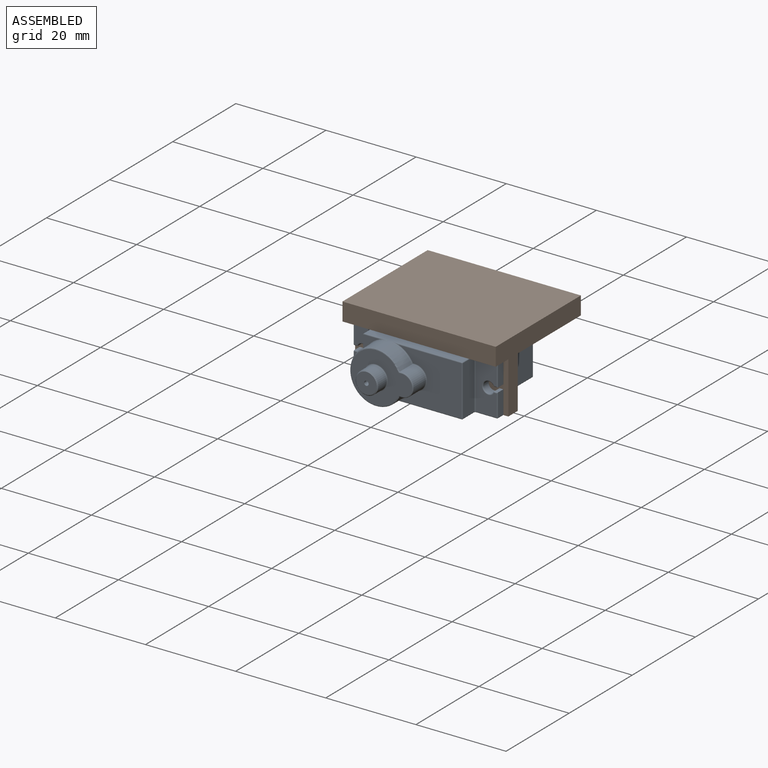
[diagram: assembled view]
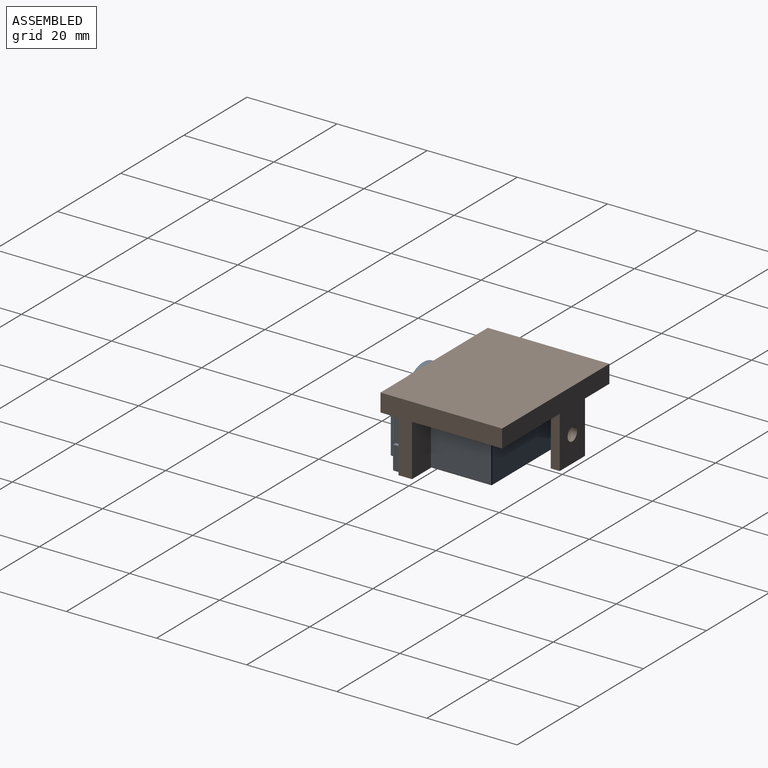
[diagram: assembled view, second angle]
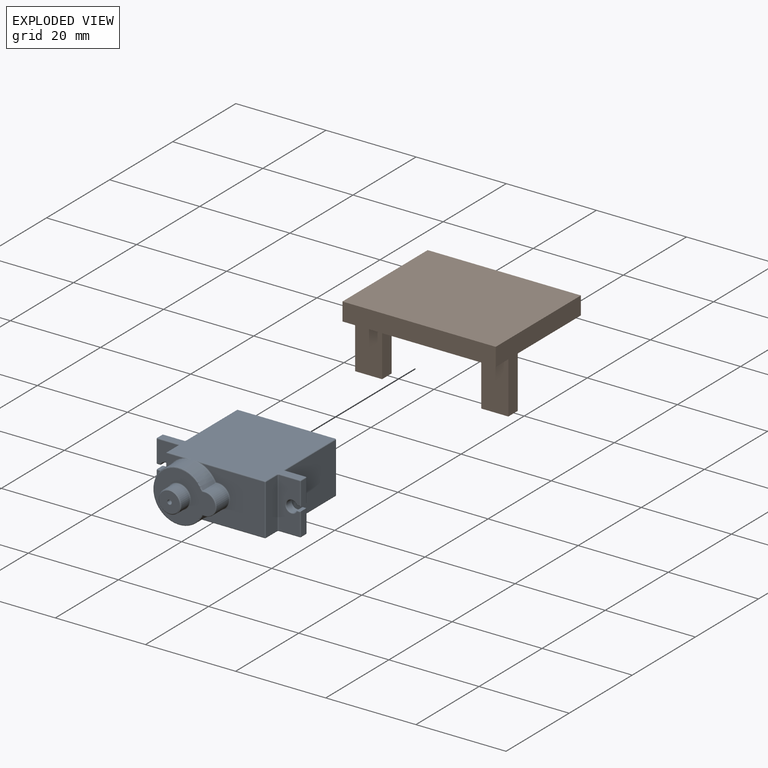
[diagram: exploded view]
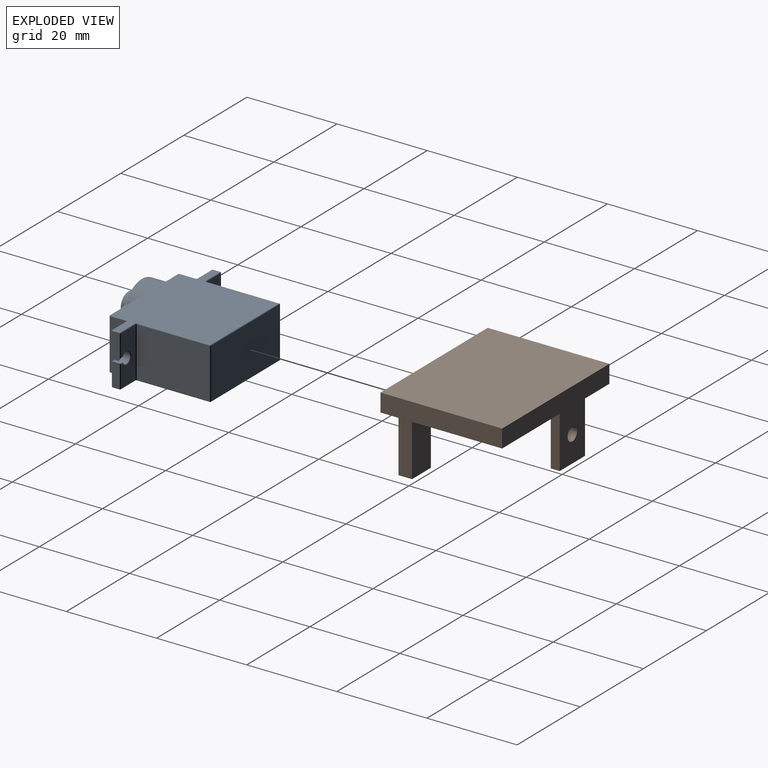
[diagram: exploded view, second angle]
ASSEMBLY  parts=2 mates=3
PART A: 138 faces, bbox 32.1x29.8x12.6 mm
  f0: plane 13.6x11.1mm, normal (0,-1,0), area 83.8mm2, adj f133,f134,f135,f136,f137
  f1: plane 4.02x3.61mm, normal (0,-1,0), area 4.9mm2, adj f9,f99,f100
  f2: plane 13.91x11.1mm, normal (0,-1,0), area 112.2mm2, adj f113,f114,f119,f122,f123,f126,f128,f129
  f3: plane 4.85x1.6mm, normal (-1,0,0), area 7.8mm2, adj f63,f64,f83,f84
  f4: plane 5.05x1.6mm, normal (1,0,0), area 8.1mm2, adj f20,f79,f95,f96
  f5: plane 16.1x11.1mm, normal (1,0,0), area 178.7mm2, adj f46,f47,f57,f58
  f6: plane 16.3x11.1mm, normal (-1,0,0), area 180.9mm2, adj f12,f48,f67,f68
  f7: plane 11.1x3.6mm, normal (1,0,0), area 40mm2, adj f111,f112,f121,f122
  f8: plane 31.6x22.1mm, normal (0,0,1), area 493.5mm2, adj f36,f37,f56,f57,f68,f69,f77,f78
  f9: plane 11.24x3.94mm, normal (-1,0,0), area 42.2mm2, adj f1,f11,f98,f101,f115,f124,f131
  f10: plane 31.6x22.1mm, normal (0,0,-1), area 493.5mm2, adj f41,f42,f45,f47,f48,f54,f55,f61
  f11: plane 4.02x3.61mm, normal (0,-1,0), area 4.9mm2, adj f9,f127,f132
  f12: plane 21.8x11.1mm, normal (0,1,0), area 242mm2, adj f6,f45,f46,f56
  f13: plane 4.85x1.6mm, normal (-1,0,0), area 7.8mm2, adj f86,f87,f103,f104
  f14: plane 11.1x4.6mm, normal (0,1,0), area 43.9mm2, adj f51,f53,f62,f63,f66,f67,f87,f88
  f15: plane 11.1x4.6mm, normal (0,-1,0), area 43.9mm2, adj f65,f75,f84,f85,f102,f103,f115,f116
  f16: plane 11.1x4.6mm, normal (0,1,0), area 43.9mm2, adj f49,f58,f59,f60,f61,f70,f78,f79
  f17: plane 11.1x4.6mm, normal (0,-1,0), area 43.9mm2, adj f71,f80,f81,f90,f96,f97,f110,f111
  f18: plane 5.05x1.6mm, normal (1,0,0), area 8.1mm2, adj f21,f60,f81,f82
  f19: cylinder r=1.25mm len=2.5mm, axis (0,-1,0), area 10.9mm2, adj f20,f21,f59,f80
  f20: plane 1.6x0.85mm, normal (0,0,-1), area 1.4mm2, adj f4,f19,f70,f90
  f21: plane 1.6x0.85mm, normal (0,0,1), area 1.4mm2, adj f18,f19,f49,f71
  f22: cylinder r=1.25mm len=2.5mm, axis (0,-1,0), area 10.9mm2, adj f23,f24,f53,f75
  f23: plane 1.6x0.65mm, normal (0,0,1), area 1mm2, adj f22,f51,f64,f65
  f24: plane 1.6x0.65mm, normal (0,0,-1), area 1mm2, adj f22,f66,f85,f86
  f25: cylinder r=2.5mm len=5mm, axis (0,1,0), area 29.8mm2, adj f26,f28,f123,f136
  f26: plane 3.8x0.57mm, normal (0,0,1), area 2.2mm2, adj f25,f27,f126,f134
  f27: cylinder r=5.75mm len=11.5mm, axis (0,1,0), area 117.9mm2, adj f26,f28,f34,f39,f98,f100,f107,f114
  f28: plane 3.8x0.57mm, normal (0,0,-1), area 2.2mm2, adj f25,f27,f119,f137
  f29: cylinder r=2.5mm len=5mm, axis (0,1,0), area 40.8mm2, adj f31,f133
  f30: plane 4.6x4.6mm, normal (0,-1,0), area 15.8mm2, adj f31,f32
  f31: cone r=2.3mm half-angle=45deg, axis (0,1,0), area 4.3mm2, adj f29,f30
  f32: cylinder r=0.5mm len=3mm, axis (0,-1,0), area 9.4mm2, adj f30,f33
  f33: plane 1x1mm, normal (0,-1,0), area 0.8mm2, adj f32
  f34: bspline ~2.08x0.39mm, area 0.3mm2, adj f27,f35,f129,f130
  f35: bspline ~2.14x0.33mm, area 0.3mm2, adj f34,f36,f128,f129
  f36: bspline ~2.14x0.2mm, area 0.4mm2, adj f8,f35,f37,f128
  f37: bspline ~2.14x0.2mm, area 0.4mm2, adj f8,f36,f38,f127
  f38: bspline ~2.14x0.33mm, area 0.3mm2, adj f37,f127,f130,f132
  f39: bspline ~2.08x0.39mm, area 0.3mm2, adj f27,f40,f100,f107
  f40: bspline ~2.14x0.33mm, area 0.3mm2, adj f39,f41,f99,f100
  f41: bspline ~2.14x0.2mm, area 0.4mm2, adj f10,f40,f42,f99
  f42: bspline ~2.14x0.2mm, area 0.4mm2, adj f10,f41,f43,f113
  f43: bspline ~2.14x0.33mm, area 0.3mm2, adj f42,f107,f113,f114
  f44: sphere r=0.2mm, area 0.1mm2, adj f45,f46,f47
  f45: cylinder r=0.2mm len=21.8mm, axis (1,0,0), area 6.8mm2, adj f10,f12,f44,f48
  f46: cylinder r=0.2mm len=11.1mm, axis (0,0,1), area 3.5mm2, adj f5,f12,f44,f50
  f47: cylinder r=0.2mm len=16.1mm, axis (0,1,0), area 5.1mm2, adj f5,f10,f44,f54
  f48: cylinder r=0.2mm len=16.3mm, axis (0,1,0), area 5.1mm2, adj f6,f10,f45,f55
  f49: cylinder r=0.2mm len=0.85mm, axis (1,0,0), area 0.2mm2, adj f16,f21,f59,f60
  f50: sphere r=0.2mm, area 0mm2, adj f46,f56,f57
  f51: cylinder r=0.2mm len=0.65mm, axis (1,0,0), area 0.2mm2, adj f14,f23,f52,f53
  f52: sphere r=0.2mm, area 0.1mm2, adj f51,f63,f64
  f53: torus R=1.45mm, axis (0,-1,0), area 2.2mm2, adj f14,f22,f51,f66
  f54: torus R=0.4mm, axis (0,0,1), area 0.1mm2, adj f10,f47,f58,f61
  f55: torus R=0.4mm, axis (0,0,1), area 0.1mm2, adj f10,f48,f62,f67
  f56: cylinder r=0.2mm len=21.8mm, axis (-1,0,0), area 6.8mm2, adj f8,f12,f50,f68
  f57: cylinder r=0.2mm len=16.1mm, axis (0,1,0), area 5.1mm2, adj f5,f8,f50,f69
  f58: cylinder r=0.2mm len=11.1mm, axis (0,0,-1), area 3.5mm2, adj f5,f16,f54,f69
  f59: torus R=1.45mm, axis (0,-1,0), area 2.2mm2, adj f16,f19,f49,f70
  f60: cylinder r=0.2mm len=5.05mm, axis (0,0,-1), area 1.6mm2, adj f16,f18,f49,f72
  f61: cylinder r=0.2mm len=4.6mm, axis (1,0,0), area 1.4mm2, adj f10,f16,f54,f72
  f62: cylinder r=0.2mm len=4.6mm, axis (1,0,0), area 1.4mm2, adj f10,f14,f55,f73
  f63: cylinder r=0.2mm len=4.85mm, axis (0,0,1), area 1.5mm2, adj f3,f14,f52,f73
  f64: cylinder r=0.2mm len=1.6mm, axis (0,1,0), area 0.5mm2, adj f3,f23,f52,f74
  f65: cylinder r=0.2mm len=0.65mm, axis (-1,0,0), area 0.2mm2, adj f15,f23,f74,f75
  f66: cylinder r=0.2mm len=0.65mm, axis (-1,0,0), area 0.2mm2, adj f14,f24,f53,f76
  f67: cylinder r=0.2mm len=11.1mm, axis (0,0,1), area 3.5mm2, adj f6,f14,f55,f77
  f68: cylinder r=0.2mm len=16.3mm, axis (0,1,0), area 5.1mm2, adj f6,f8,f56,f77
  f69: torus R=0.4mm, axis (0,0,-1), area 0.1mm2, adj f8,f57,f58,f78
  f70: cylinder r=0.2mm len=0.85mm, axis (-1,0,0), area 0.2mm2, adj f16,f20,f59,f79
  f71: cylinder r=0.2mm len=0.85mm, axis (-1,0,0), area 0.2mm2, adj f17,f21,f80,f81
  f72: sphere r=0.2mm, area 0.1mm2, adj f60,f61,f82
  f73: sphere r=0.2mm, area 0mm2, adj f62,f63,f83
  f74: sphere r=0.2mm, area 0.1mm2, adj f64,f65,f84
  f75: torus R=1.45mm, axis (0,-1,0), area 2.2mm2, adj f15,f22,f65,f85
  f76: sphere r=0.2mm, area 0.1mm2, adj f66,f86,f87
  f77: torus R=0.4mm, axis (0,0,-1), area 0.1mm2, adj f8,f67,f68,f88
  f78: cylinder r=0.2mm len=4.6mm, axis (-1,0,0), area 1.4mm2, adj f8,f16,f69,f89
  f79: cylinder r=0.2mm len=5.05mm, axis (0,0,-1), area 1.6mm2, adj f4,f16,f70,f89
  f80: torus R=1.45mm, axis (0,-1,0), area 2.2mm2, adj f17,f19,f71,f90
  f81: cylinder r=0.2mm len=5.05mm, axis (0,0,1), area 1.6mm2, adj f17,f18,f71,f91
  f82: cylinder r=0.2mm len=1.6mm, axis (0,1,0), area 0.5mm2, adj f10,f18,f72,f91
  f83: cylinder r=0.2mm len=1.6mm, axis (0,1,0), area 0.5mm2, adj f3,f10,f73,f92
  f84: cylinder r=0.2mm len=4.85mm, axis (0,0,-1), area 1.5mm2, adj f3,f15,f74,f92
  f85: cylinder r=0.2mm len=0.65mm, axis (1,0,0), area 0.2mm2, adj f15,f24,f75,f93
  f86: cylinder r=0.2mm len=1.6mm, axis (0,1,0), area 0.5mm2, adj f13,f24,f76,f93
  f87: cylinder r=0.2mm len=4.85mm, axis (0,0,1), area 1.5mm2, adj f13,f14,f76,f94
  f88: cylinder r=0.2mm len=4.6mm, axis (-1,0,0), area 1.4mm2, adj f8,f14,f77,f94
  f89: sphere r=0.2mm, area 0mm2, adj f78,f79,f95
  f90: cylinder r=0.2mm len=0.85mm, axis (1,0,0), area 0.2mm2, adj f17,f20,f80,f96
  f91: sphere r=0.2mm, area 0.1mm2, adj f81,f82,f97
  f92: sphere r=0.2mm, area 0.1mm2, adj f83,f84,f102
  f93: sphere r=0.2mm, area 0.1mm2, adj f85,f86,f103
  f94: sphere r=0.2mm, area 0.1mm2, adj f87,f88,f104
  f95: cylinder r=0.2mm len=1.6mm, axis (0,1,0), area 0.5mm2, adj f4,f8,f89,f105
  f96: cylinder r=0.2mm len=5.05mm, axis (0,0,1), area 1.6mm2, adj f4,f17,f90,f105
  f97: cylinder r=0.2mm len=4.6mm, axis (-1,0,0), area 1.4mm2, adj f10,f17,f91,f106
  f98: bspline ~1.57x0.21mm, area 0.2mm2, adj f9,f27,f100
  f99: cylinder r=0.2mm len=3.62mm, axis (-1,0,0), area 1.1mm2, adj f1,f10,f40,f41,f101
  f100: torus R=5.95mm, axis (0,-1,0), area 1.7mm2, adj f1,f27,f39,f40,f98
  f101: cylinder r=0.2mm len=3.8mm, axis (0,1,0), area 1.2mm2, adj f9,f10,f99,f108
  f102: cylinder r=0.2mm len=4.6mm, axis (-1,0,0), area 1.4mm2, adj f10,f15,f92,f108
  f103: cylinder r=0.2mm len=4.85mm, axis (0,0,-1), area 1.5mm2, adj f13,f15,f93,f109
  f104: cylinder r=0.2mm len=1.6mm, axis (0,1,0), area 0.5mm2, adj f8,f13,f94,f109
  f105: sphere r=0.2mm, area 0mm2, adj f95,f96,f110
  f106: torus R=0.4mm, axis (0,0,1), area 0.1mm2, adj f10,f97,f111,f112
  f107: bspline ~2.08x0.39mm, area 0.3mm2, adj f27,f39,f43,f114
  f108: torus R=0.4mm, axis (0,0,1), area 0.1mm2, adj f10,f101,f102,f115
  f109: sphere r=0.2mm, area 0.1mm2, adj f103,f104,f116
  f110: cylinder r=0.2mm len=4.6mm, axis (1,0,0), area 1.4mm2, adj f8,f17,f105,f117
  f111: cylinder r=0.2mm len=11.1mm, axis (0,0,1), area 3.5mm2, adj f7,f17,f106,f117
  f112: cylinder r=0.2mm len=3.6mm, axis (0,1,0), area 1.1mm2, adj f7,f10,f106,f118
  f113: cylinder r=0.2mm len=13.92mm, axis (-1,0,0), area 4.4mm2, adj f2,f10,f42,f43,f118
  f114: torus R=5.95mm, axis (0,-1,0), area 1.4mm2, adj f2,f27,f43,f107,f119
  f115: cylinder r=0.2mm len=11.1mm, axis (0,0,-1), area 3.5mm2, adj f9,f15,f108,f120
  f116: cylinder r=0.2mm len=4.6mm, axis (1,0,0), area 1.4mm2, adj f8,f15,f109,f120
  f117: torus R=0.4mm, axis (0,0,-1), area 0.1mm2, adj f8,f110,f111,f121
  f118: sphere r=0.2mm, area 0.1mm2, adj f112,f113,f122
  f119: cylinder r=0.2mm len=0.57mm, axis (1,0,0), area 0.2mm2, adj f2,f28,f114,f123
  f120: torus R=0.4mm, axis (0,0,-1), area 0.1mm2, adj f8,f115,f116,f124
  f121: cylinder r=0.2mm len=3.6mm, axis (0,1,0), area 1.1mm2, adj f7,f8,f117,f125
  f122: cylinder r=0.2mm len=11.1mm, axis (0,0,-1), area 3.5mm2, adj f2,f7,f118,f125
  f123: torus R=2.7mm, axis (0,-1,0), area 2.5mm2, adj f2,f25,f119,f126
  f124: cylinder r=0.2mm len=3.8mm, axis (0,1,0), area 1.2mm2, adj f8,f9,f120,f127
  f125: sphere r=0.2mm, area 0mm2, adj f121,f122,f128
  f126: cylinder r=0.2mm len=0.57mm, axis (-1,0,0), area 0.2mm2, adj f2,f26,f123,f129
  f127: cylinder r=0.2mm len=3.62mm, axis (1,0,0), area 1.1mm2, adj f8,f11,f37,f38,f124
  f128: cylinder r=0.2mm len=13.92mm, axis (1,0,0), area 4.4mm2, adj f2,f8,f35,f36,f125
  f129: torus R=5.95mm, axis (0,-1,0), area 1.4mm2, adj f2,f27,f34,f35,f126
  f130: bspline ~2.08x0.39mm, area 0.3mm2, adj f27,f34,f38,f132
  f131: bspline ~1.57x0.21mm, area 0.2mm2, adj f9,f27,f132
  f132: torus R=5.95mm, axis (0,-1,0), area 1.7mm2, adj f11,f27,f38,f130,f131
  f133: torus R=2.7mm, axis (0,1,0), area 5.1mm2, adj f0,f29
  f134: cylinder r=0.2mm len=0.7mm, axis (-1,0,0), area 0.2mm2, adj f0,f26,f135,f136
  f135: torus R=5.55mm, axis (0,1,0), area 9.6mm2, adj f0,f27,f134,f137
  f136: torus R=2.3mm, axis (0,1,0), area 2.4mm2, adj f0,f25,f134,f137
  f137: cylinder r=0.2mm len=0.7mm, axis (1,0,0), area 0.2mm2, adj f0,f28,f135,f136
PART B: 19 faces, bbox 34x27x15.5 mm
  f0: plane 34x27mm, normal (0,0,-1), area 866mm2, adj f1,f2,f3,f5,f7,f9,f10,f11
  f1: plane 11.5x6mm, normal (0,1,0), area 69mm2, adj f0,f7,f8,f9
  f2: plane 11.5x6mm, normal (0,-1,0), area 69mm2, adj f0,f7,f8,f9
  f3: plane 11.5x3mm, normal (-1,0,0), area 34.5mm2, adj f0,f4,f10,f11
  f4: plane 6x3mm, normal (0,0,-1), area 18mm2, adj f3,f5,f10,f11
  f5: plane 27x15.5mm, normal (1,0,0), area 142.5mm2, adj f0,f4,f6,f10,f11,f12,f13
  f6: plane 34x27mm, normal (0,0,1), area 918mm2, adj f5,f7,f12,f13
  f7: plane 27x15.5mm, normal (-1,0,0), area 142.5mm2, adj f0,f1,f2,f6,f8,f12,f13
  f8: plane 6x3mm, normal (0,0,-1), area 18mm2, adj f1,f2,f7,f9
  f9: plane 11.5x3mm, normal (1,0,0), area 34.5mm2, adj f0,f1,f2,f8
  f10: plane 11.5x6mm, normal (0,-1,0), area 69mm2, adj f0,f3,f4,f5
  f11: plane 11.5x6mm, normal (0,1,0), area 69mm2, adj f0,f3,f4,f5
  f12: plane 34x4mm, normal (0,-1,0), area 136mm2, adj f0,f5,f6,f7
  f13: plane 34x15.5mm, normal (0,1,0), area 220.9mm2, adj f0,f5,f6,f7,f14,f15,f16,f18
  f14: plane 11.5x2mm, normal (1,0,0), area 23mm2, adj f0,f13,f15,f17
  f15: plane 8x2mm, normal (0,0,-1), area 16mm2, adj f13,f14,f16,f17
  f16: plane 11.5x2mm, normal (-1,0,0), area 23mm2, adj f0,f13,f15,f17
  f17: plane 11.5x8mm, normal (0,-1,0), area 84.9mm2, adj f0,f14,f15,f16,f18
  f18: cylinder r=1.5mm len=3mm, axis (0,1,0), area 18.8mm2, adj f13,f17
PLACE A t=(52.74,33.28,0.72)mm
PLACE B t=(24.74,19.78,0.72)mm
MATE planar A.f16 <-> B.f10  axis (0,1,0) through (55.13,16.78,6.47)mm
MATE planar A.f8 <-> B.f0  axis (0,0,1) through (41.74,21.83,12.22)mm
MATE planar A.f5 <-> B.f3  axis (1,0,0) through (52.74,16.98,0.92)mm
